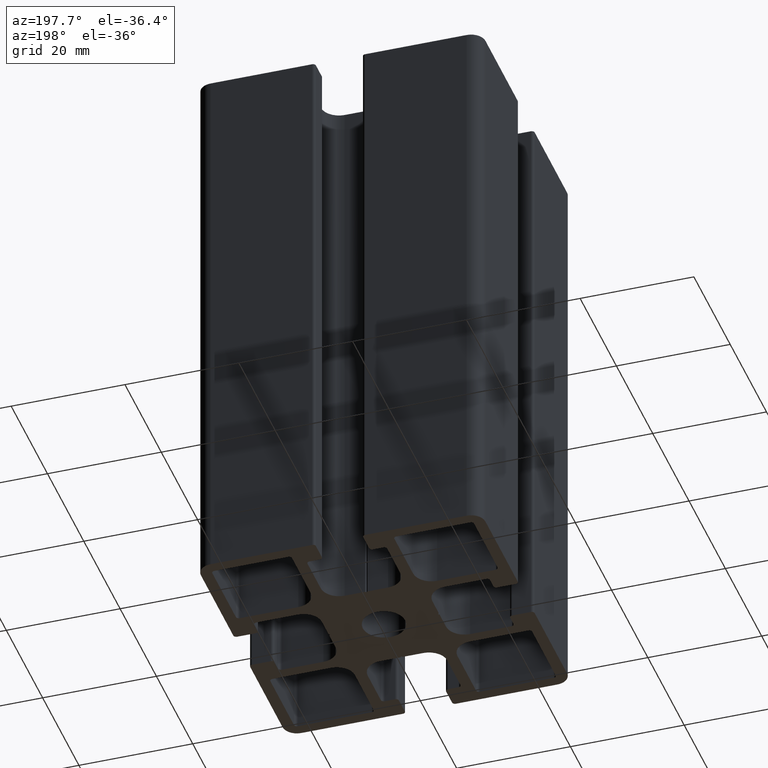
[diagram: clean part render]
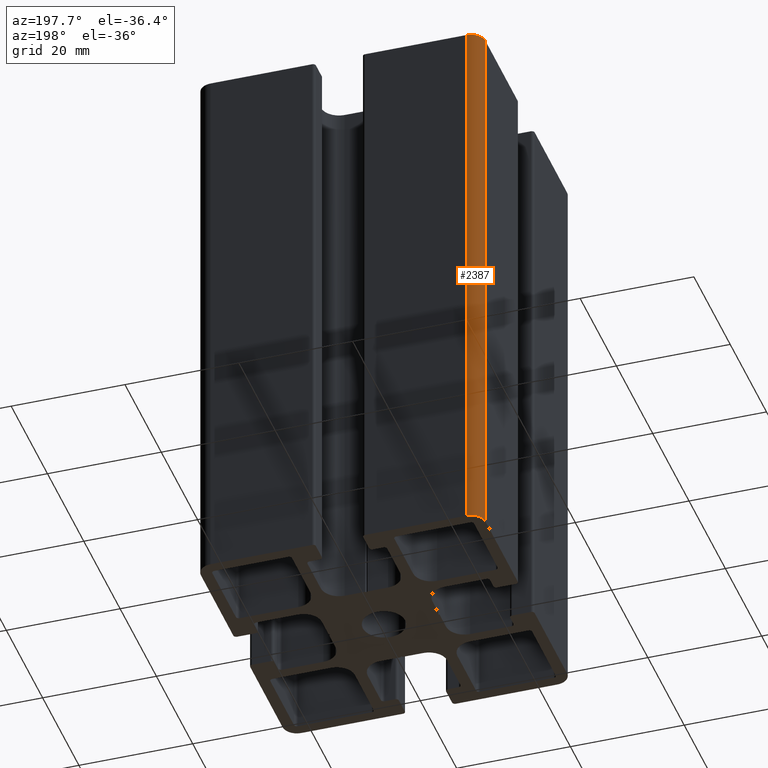
[diagram: same view with one face highlighted and labeled with its STEP entity id]
A machine part, auxiliary view. The second image highlights one B-rep face of the part: STEP entity #2387.
In plain terms, the highlighted cylindrical surface (edge-blend (fillet) strip) has radius 2.5 mm, axis along (0, 0, 1).
Its self-contained STEP definition (entity closure, byte-faithful):
#207=FACE_OUTER_BOUND('',#327,.T.);
#327=EDGE_LOOP('',(#1977,#1978,#1979,#1980));
#581=LINE('',#4006,#825);
#582=LINE('',#4012,#826);
#825=VECTOR('',#3298,100.);
#826=VECTOR('',#3305,100.);
#933=CIRCLE('',#2613,2.49999999999993);
#934=CIRCLE('',#2614,2.49999999999993);
#1165=VERTEX_POINT('',#4002);
#1166=VERTEX_POINT('',#4004);
#1167=VERTEX_POINT('',#4008);
#1168=VERTEX_POINT('',#4010);
#1513=EDGE_CURVE('',#1165,#1166,#581,.T.);
#1514=EDGE_CURVE('',#1167,#1165,#933,.T.);
#1515=EDGE_CURVE('',#1168,#1166,#934,.T.);
#1516=EDGE_CURVE('',#1167,#1168,#582,.T.);
#1977=ORIENTED_EDGE('',*,*,#1514,.T.);
#1978=ORIENTED_EDGE('',*,*,#1513,.T.);
#1979=ORIENTED_EDGE('',*,*,#1515,.F.);
#1980=ORIENTED_EDGE('',*,*,#1516,.F.);
#2271=CYLINDRICAL_SURFACE('',#2612,2.49999999999993);
#2387=ADVANCED_FACE('',(#207),#2271,.T.);
#2612=AXIS2_PLACEMENT_3D('',#4007,#3299,#3300);
#2613=AXIS2_PLACEMENT_3D('',#4009,#3301,#3302);
#2614=AXIS2_PLACEMENT_3D('',#4011,#3303,#3304);
#3298=DIRECTION('',(0.,0.,1.));
#3299=DIRECTION('center_axis',(0.,0.,1.));
#3300=DIRECTION('ref_axis',(7.1054273576012E-15,1.,0.));
#3301=DIRECTION('center_axis',(0.,0.,1.));
#3302=DIRECTION('ref_axis',(7.1054273576012E-15,1.,0.));
#3303=DIRECTION('center_axis',(0.,0.,1.));
#3304=DIRECTION('ref_axis',(7.1054273576012E-15,1.,0.));
#3305=DIRECTION('',(0.,0.,1.));
#4002=CARTESIAN_POINT('',(-25.0000000000001,22.5000000000016,0.));
#4004=CARTESIAN_POINT('',(-25.0000000000001,22.5000000000016,100.));
#4006=CARTESIAN_POINT('',(-25.0000000000001,22.5000000000016,0.));
#4007=CARTESIAN_POINT('Origin',(-22.5000000000001,22.5000000000016,0.));
#4008=CARTESIAN_POINT('',(-22.5000000000001,25.0000000000016,0.));
#4009=CARTESIAN_POINT('Origin',(-22.5000000000001,22.5000000000016,0.));
#4010=CARTESIAN_POINT('',(-22.5000000000001,25.0000000000016,100.));
#4011=CARTESIAN_POINT('Origin',(-22.5000000000001,22.5000000000016,100.));
#4012=CARTESIAN_POINT('',(-22.5000000000001,25.0000000000016,0.));